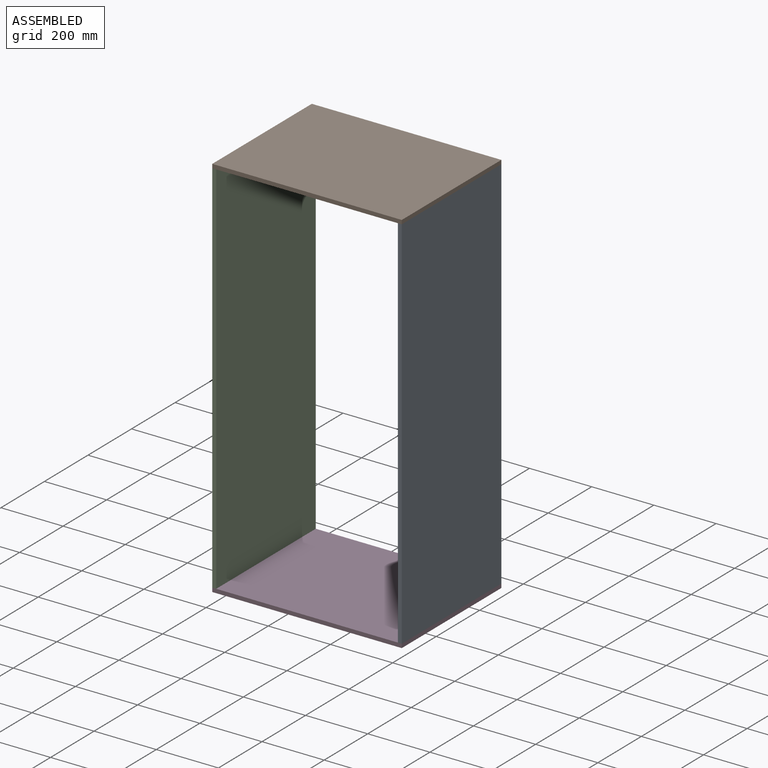
[diagram: assembled view]
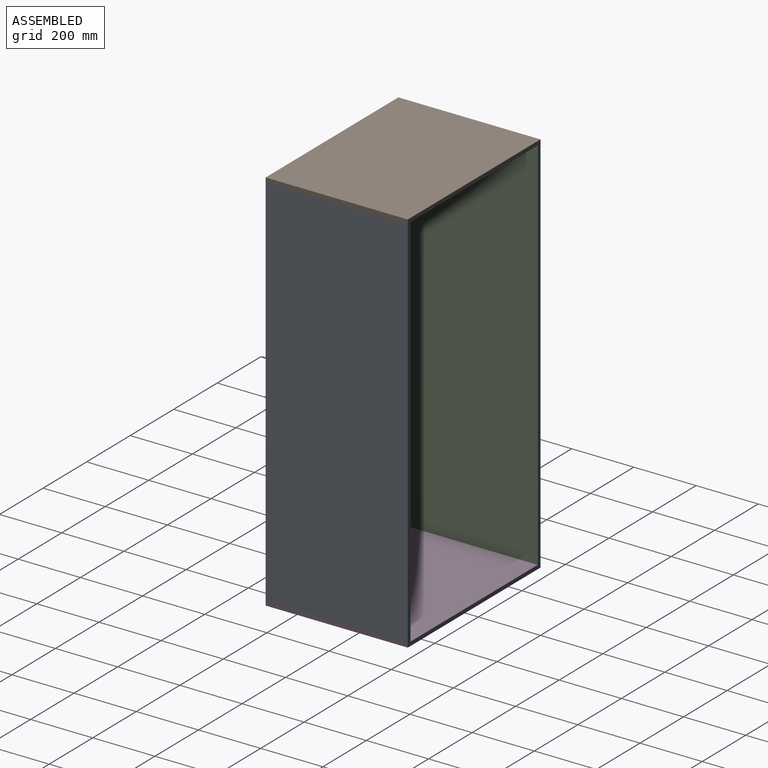
[diagram: assembled view, second angle]
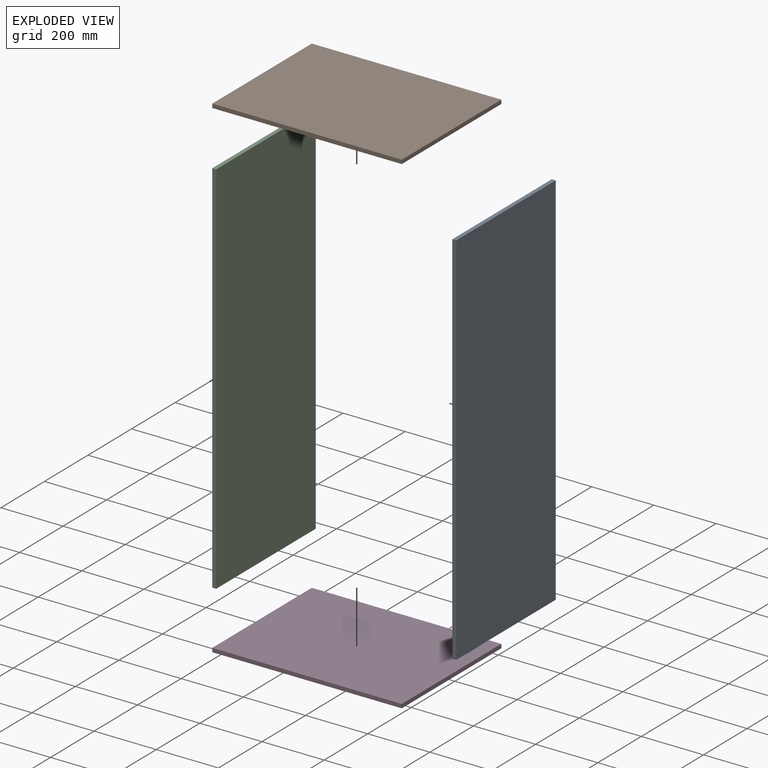
[diagram: exploded view]
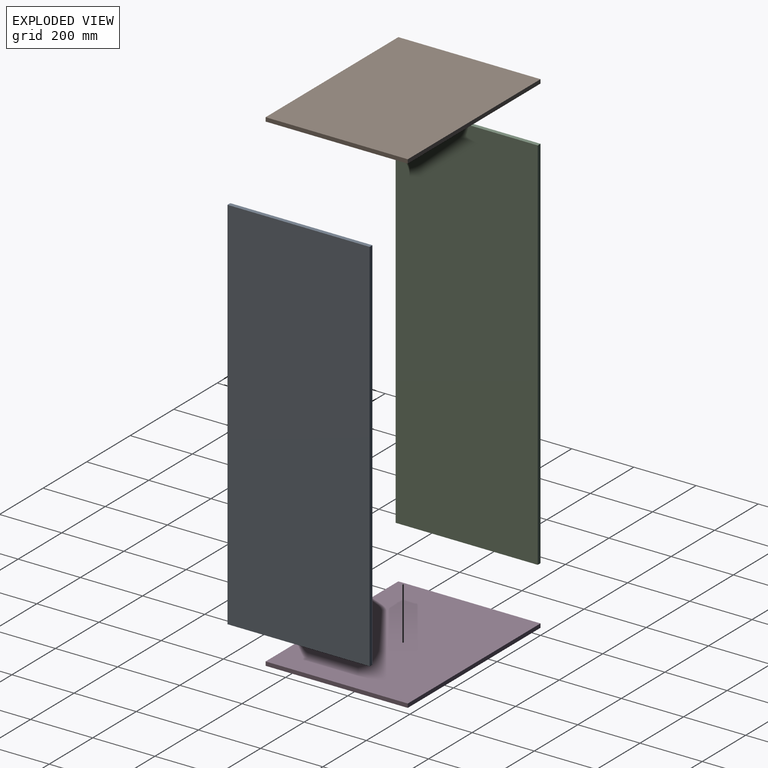
[diagram: exploded view, second angle]
ASSEMBLY  parts=4 mates=3
PART A: 6 faces, bbox 12.7x457.2x1219.2 mm
  f0: plane 1219.2x12.7mm, normal (0,-1,0), area 15483.8mm2, adj f1,f3,f4,f5
  f1: plane 457.2x12.7mm, normal (0,0,-1), area 5806.4mm2, adj f0,f2,f3,f4
  f2: plane 1219.2x12.7mm, normal (0,1,0), area 15483.8mm2, adj f1,f3,f4,f5
  f3: plane 1219.2x457.2mm, normal (1,0,0), area 557418.2mm2, adj f0,f1,f2,f5
  f4: plane 1219.2x457.2mm, normal (-1,0,0), area 557418.2mm2, adj f0,f1,f2,f5
  f5: plane 457.2x12.7mm, normal (0,0,1), area 5806.4mm2, adj f0,f2,f3,f4
PART B: 6 faces, bbox 609.6x457.2x12.7 mm
  f0: plane 609.6x457.2mm, normal (0,0,1), area 278709.1mm2, adj f1,f3,f4,f5
  f1: plane 457.2x12.7mm, normal (-1,0,0), area 5806.4mm2, adj f0,f2,f4,f5
  f2: plane 609.6x457.2mm, normal (0,0,-1), area 278709.1mm2, adj f1,f3,f4,f5
  f3: plane 457.2x12.7mm, normal (1,0,0), area 5806.4mm2, adj f0,f2,f4,f5
  f4: plane 609.6x12.7mm, normal (0,-1,0), area 7741.9mm2, adj f0,f1,f2,f3
  f5: plane 609.6x12.7mm, normal (0,1,0), area 7741.9mm2, adj f0,f1,f2,f3
PART C: same geometry as A
PART D: same geometry as B
PLACE A t=(596.9,0,0)mm
PLACE B t=(0,0,1231.9)mm
PLACE C at identity
PLACE D at identity fixed
MATE fastened C.f5 <-> B.f2  axis (0,0,1) through (0,0,1219.2)mm
MATE fastened A.f3 <-> D.f3  axis (1,0,0) through (609.6,0,0)mm
MATE fastened C.f4 <-> D.f1  axis (-1,0,0) through (0,0,0)mm
